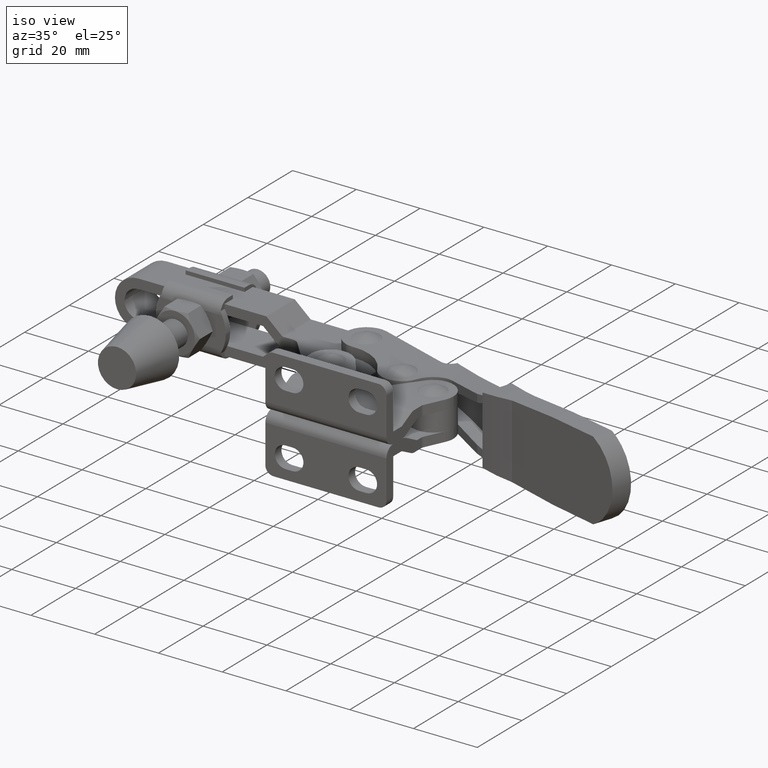
[diagram: clean part render]
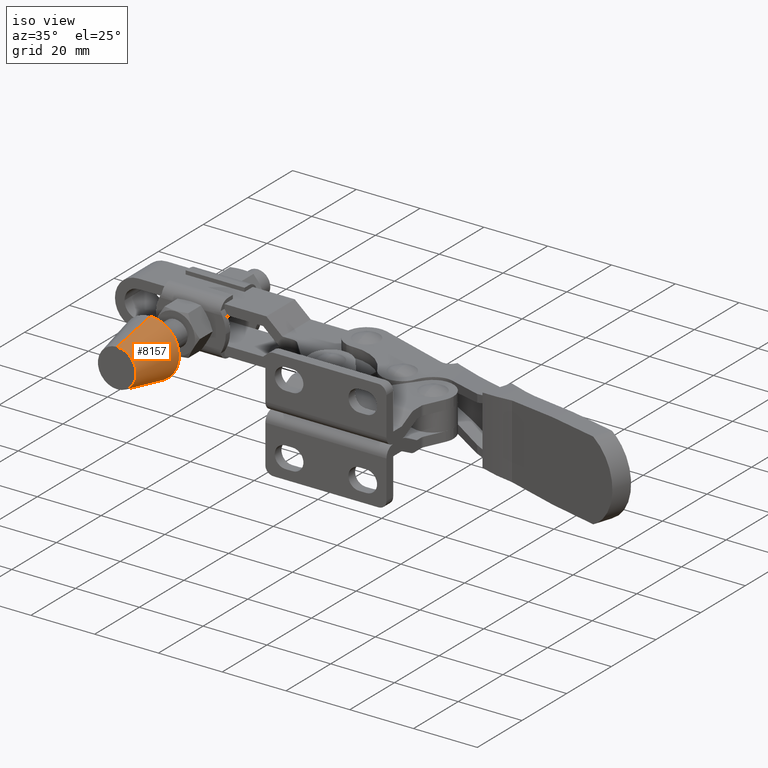
[diagram: same view with one face highlighted and labeled with its STEP entity id]
A machine part, iso view. The second image highlights one B-rep face of the part: STEP entity #8157.
In plain terms, the highlighted conical surface has half-angle 11.31 deg.
Its self-contained STEP definition (entity closure, byte-faithful):
#83 = EDGE_CURVE ( 'NONE', #3250, #1829, #4742, .T. ) ;
#183 = CARTESIAN_POINT ( 'NONE',  ( -43.00011493732858300, -2.923405481685456900E-006, 6.049972185330183500 ) ) ;
#944 = CIRCLE ( 'NONE', #9645, 6.000000000000000000 ) ;
#1343 = VECTOR ( 'NONE', #10590, 1000.000000000000000 ) ;
#1829 = VERTEX_POINT ( 'NONE', #9747 ) ;
#1966 = ORIENTED_EDGE ( 'NONE', *, *, #9309, .F. ) ;
#2420 = EDGE_LOOP ( 'NONE', ( #1966, #6664, #3091, #10147 ) ) ;
#2483 = DIRECTION ( 'NONE',  ( 0.0000000000000000000, 0.0000000000000000000, -1.000000000000000000 ) ) ;
#2584 = EDGE_CURVE ( 'NONE', #3338, #1829, #8254, .T. ) ;
#3091 = ORIENTED_EDGE ( 'NONE', *, *, #83, .T. ) ;
#3250 = VERTEX_POINT ( 'NONE', #3750 ) ;
#3338 = VERTEX_POINT ( 'NONE', #9092 ) ;
#3590 = AXIS2_PLACEMENT_3D ( 'NONE', #9404, #8528, #2483 ) ;
#3703 = DIRECTION ( 'NONE',  ( 0.0000000000000000000, 0.0000000000000000000, 1.000000000000000000 ) ) ;
#3750 = CARTESIAN_POINT ( 'NONE',  ( -43.00011493732858300, 14.99999707659451800, -8.950027814669816500 ) ) ;
#3975 = DIRECTION ( 'NONE',  ( 2.401729971581267900E-017, 0.9805806756909202200, -0.1961161351381839900 ) ) ;
#4739 = LINE ( 'NONE', #4860, #11104 ) ;
#4742 = CIRCLE ( 'NONE', #3590, 9.000000000000000000 ) ;
#4750 = DIRECTION ( 'NONE',  ( -0.0000000000000000000, -1.000000000000000000, -0.0000000000000000000 ) ) ;
#4860 = CARTESIAN_POINT ( 'NONE',  ( -43.00011493732858300, -2.923405481685456900E-006, -5.950027814669817300 ) ) ;
#5416 = DIRECTION ( 'NONE',  ( 0.0000000000000000000, 1.000000000000000000, 0.0000000000000000000 ) ) ;
#6023 = VERTEX_POINT ( 'NONE', #11195 ) ;
#6664 = ORIENTED_EDGE ( 'NONE', *, *, #10042, .T. ) ;
#6952 = CONICAL_SURFACE ( 'NONE', #7248, 6.000000000000000000, 0.1973955598498806600 ) ;
#7248 = AXIS2_PLACEMENT_3D ( 'NONE', #10605, #5416, #3703 ) ;
#8157 = ADVANCED_FACE ( 'NONE', ( #10635 ), #6952, .T. ) ;
#8254 = LINE ( 'NONE', #183, #1343 ) ;
#8528 = DIRECTION ( 'NONE',  ( -0.0000000000000000000, -1.000000000000000000, -0.0000000000000000000 ) ) ;
#9092 = CARTESIAN_POINT ( 'NONE',  ( -43.00011493732858300, -2.923405481685456900E-006, 6.049972185330183500 ) ) ;
#9309 = EDGE_CURVE ( 'NONE', #6023, #3338, #944, .T. ) ;
#9404 = CARTESIAN_POINT ( 'NONE',  ( -43.00011493732858300, 14.99999707659451800, 0.04997218533018301500 ) ) ;
#9645 = AXIS2_PLACEMENT_3D ( 'NONE', #9926, #4750, #10805 ) ;
#9747 = CARTESIAN_POINT ( 'NONE',  ( -43.00011493732858300, 14.99999707659451800, 9.049972185330181800 ) ) ;
#9926 = CARTESIAN_POINT ( 'NONE',  ( -43.00011493732858300, -2.923405481685456900E-006, 0.04997218533018301500 ) ) ;
#10042 = EDGE_CURVE ( 'NONE', #6023, #3250, #4739, .T. ) ;
#10147 = ORIENTED_EDGE ( 'NONE', *, *, #2584, .F. ) ;
#10590 = DIRECTION ( 'NONE',  ( 0.0000000000000000000, 0.9805806756909202200, 0.1961161351381839900 ) ) ;
#10605 = CARTESIAN_POINT ( 'NONE',  ( -43.00011493732858300, -2.923405481685456900E-006, 0.04997218533018301500 ) ) ;
#10635 = FACE_OUTER_BOUND ( 'NONE', #2420, .T. ) ;
#10805 = DIRECTION ( 'NONE',  ( 0.0000000000000000000, 0.0000000000000000000, -1.000000000000000000 ) ) ;
#11104 = VECTOR ( 'NONE', #3975, 1000.000000000000000 ) ;
#11195 = CARTESIAN_POINT ( 'NONE',  ( -43.00011493732858300, -2.923405481685456900E-006, -5.950027814669817300 ) ) ;